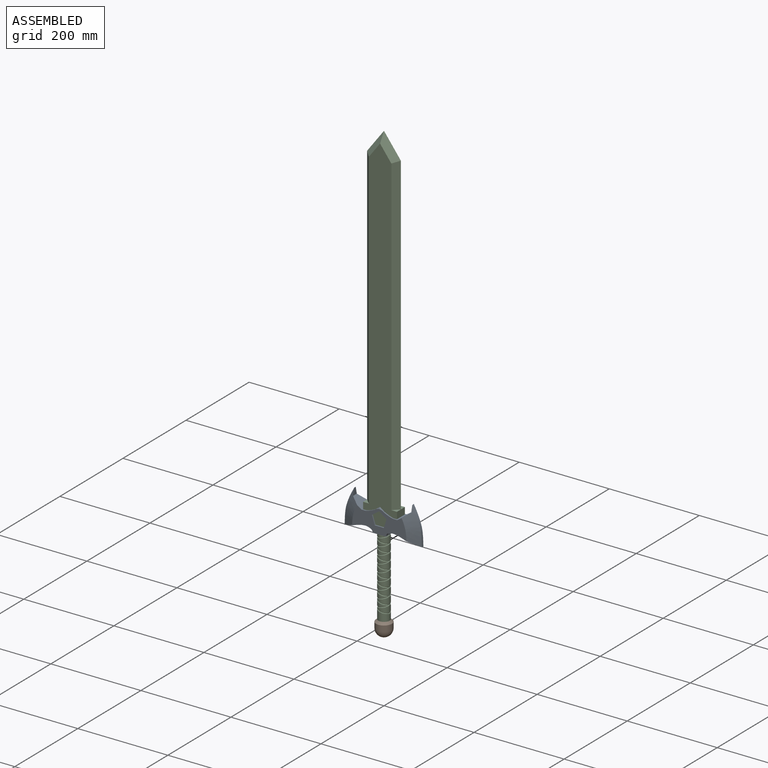
[diagram: assembled view]
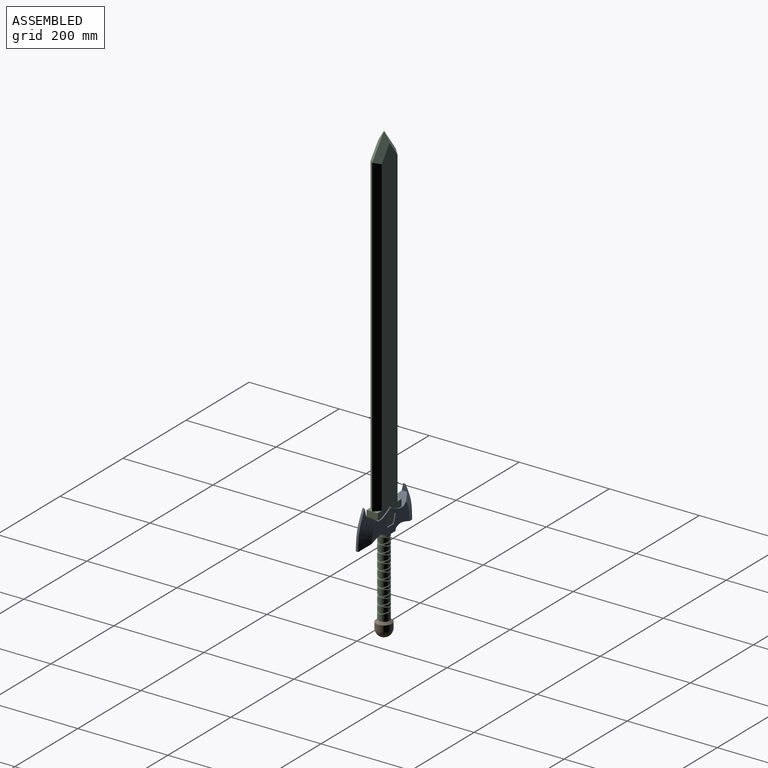
[diagram: assembled view, second angle]
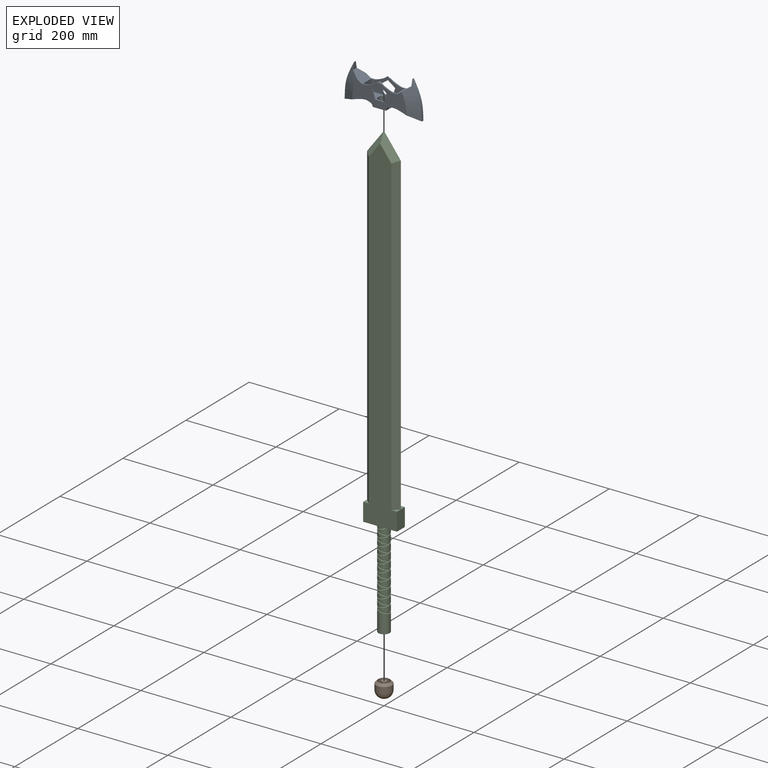
[diagram: exploded view]
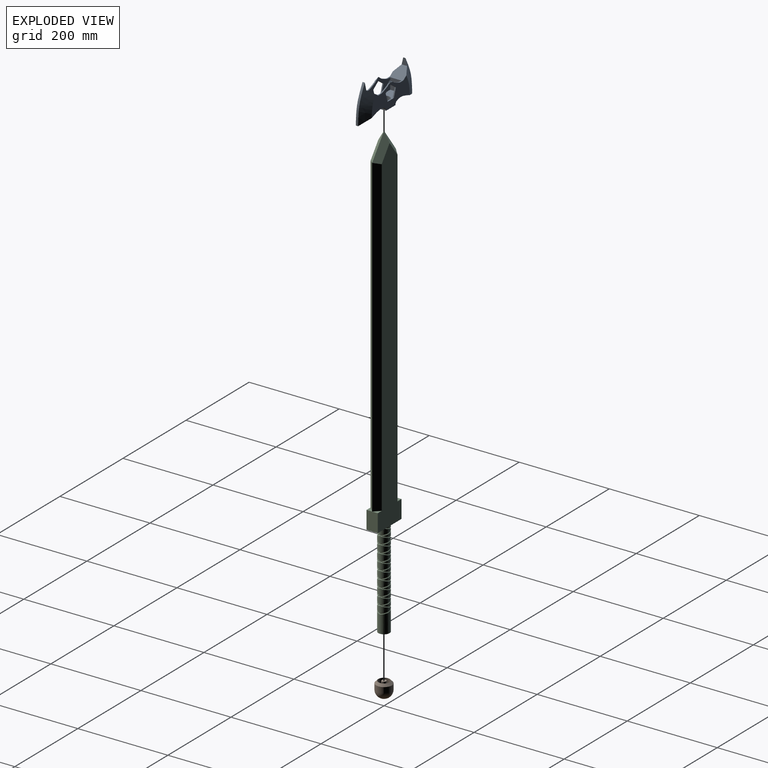
[diagram: exploded view, second angle]
ASSEMBLY  parts=3 mates=2
PART A: 64 faces, bbox 174.2x32.8x82.8 mm
  f0: plane 37.5x25mm, normal (0,0,1), area 692.1mm2, adj f59,f60,f61,f63
  f1: plane 16.18x11.76mm, normal (0.59,0,-0.81), area 50mm2, adj f2,f9,f44,f60
  f2: plane 16.18x11.76mm, normal (-0.59,0,-0.81), area 50mm2, adj f1,f3,f44,f60
  f3: plane 19.02x6.18mm, normal (-0.95,0,0.31), area 50mm2, adj f2,f4,f44,f60
  f4: plane 20x2.5mm, normal (0,0,1), area 50mm2, adj f3,f9,f44,f60
  f5: extruded ~20.42x7.5mm, area 54.6mm2, adj f6,f34,f44,f60
  f6: plane 2.5x2.07mm, normal (0.6,0,0.8), area 6.5mm2, adj f5,f12,f44,f60
  f7: plane 2.5x2.07mm, normal (-0.6,0,0.8), area 6.5mm2, adj f8,f37,f44,f60
  f8: extruded ~20.42x7.5mm, area 54.6mm2, adj f7,f40,f44,f60
  f9: plane 19.02x6.18mm, normal (0.95,0,0.31), area 50mm2, adj f1,f4,f44,f60
  f10: cylinder r=15mm len=7.17mm, axis (0,1,0), area 9.5mm2, adj f38,f45,f54
  f11: cylinder r=15mm len=7.17mm, axis (0,1,0), area 9.5mm2, adj f36,f45,f56
  f12: cylinder r=15mm len=7.17mm, axis (0,1,0), area 9.5mm2, adj f6,f44,f57
  f13: plane 16.18x11.76mm, normal (0.59,0,-0.81), area 50mm2, adj f14,f43,f45,f59
  f14: plane 16.18x11.76mm, normal (-0.59,0,-0.81), area 50mm2, adj f13,f15,f45,f59
  f15: plane 19.02x6.18mm, normal (-0.95,0,0.31), area 50mm2, adj f14,f16,f45,f59
  f16: plane 20x2.5mm, normal (0,0,1), area 50mm2, adj f15,f43,f45,f59
  f17: extruded ~39.57x17.21mm, area 216.3mm2, adj f18,f42,f50,f52
  f18: extruded ~39.99x5mm, area 201.4mm2, adj f17,f19,f51,f53
  f19: extruded ~53.47x30mm, area 1348.1mm2, adj f18,f20,f44,f45,f51,f53
  f20: plane 30x1.82mm, normal (0,0,-1), area 54.5mm2, adj f19,f21,f44,f45
  f21: extruded ~30x12.91mm, area 406.8mm2, adj f20,f22,f44,f45
  f22: plane 30x3.75mm, normal (-0.83,0,-0.55), area 135.2mm2, adj f21,f23,f44,f45
  f23: plane 30x2.5mm, normal (-1,0,0), area 75mm2, adj f22,f24,f44,f45
  f24: plane 30x30mm, normal (0,0,-1), area 409.1mm2, adj f23,f25,f44,f45,f63
  f25: plane 30x2.5mm, normal (1,0,0), area 75mm2, adj f24,f26,f44,f45
  f26: plane 30x3.75mm, normal (0.83,0,-0.55), area 135.2mm2, adj f25,f27,f44,f45
  f27: extruded ~30x12.91mm, area 406.8mm2, adj f26,f28,f44,f45
  f28: plane 30x1.82mm, normal (0,0,-1), area 54.5mm2, adj f27,f29,f44,f45
  f29: extruded ~53.47x30mm, area 1348.1mm2, adj f28,f30,f44,f45,f47,f49
  f30: extruded ~39.99x5mm, area 201.4mm2, adj f29,f31,f47,f49
  f31: extruded ~39.57x17.21mm, area 216.3mm2, adj f30,f32,f46,f48
  f32: plane 17.78x14.67mm, normal (-1,0,0), area 127mm2, adj f31,f33,f46,f48
  f33: plane 30.09x24.66mm, normal (-0.57,0,0.82), area 734.1mm2, adj f32,f34,f44,f45,f46,f48
  f34: plane 30x9.58mm, normal (0,0,1), area 110.4mm2, adj f5,f33,f35,f44,f45,f59,f60,f61
  f35: extruded ~20.42x7.5mm, area 54.6mm2, adj f34,f36,f45,f59
  f36: plane 2.5x2.07mm, normal (0.6,0,0.8), area 6.5mm2, adj f11,f35,f45,f59
  f37: cylinder r=15mm len=7.17mm, axis (0,1,0), area 9.5mm2, adj f7,f44,f55
  f38: plane 2.5x2.07mm, normal (-0.6,0,0.8), area 6.5mm2, adj f10,f39,f45,f59
  f39: extruded ~20.42x7.5mm, area 54.6mm2, adj f38,f40,f45,f59
  f40: plane 30x9.58mm, normal (0,0,1), area 110.4mm2, adj f8,f39,f41,f44,f45,f58,f59,f60
  f41: plane 30.09x24.66mm, normal (0.57,0,0.82), area 734.1mm2, adj f40,f42,f44,f45,f50,f52
  f42: plane 17.78x14.67mm, normal (1,0,0), area 127mm2, adj f17,f41,f50,f52
  f43: plane 19.02x6.18mm, normal (0.95,0,0.31), area 50mm2, adj f13,f16,f45,f59
  f44: plane 122.64x52.76mm, normal (0,-1,0), area 3699.4mm2, adj f1,f2,f3,f4,f5,f6,f7,f8
  f45: plane 122.64x52.76mm, normal (0,1,0), area 3699.4mm2, adj f10,f11,f13,f14,f15,f16,f19,f20
  f46: bspline ~45.85x39.34mm, area 784.9mm2, adj f31,f32,f33,f45,f47
  f47: bspline ~40.48x28.11mm, area 895.4mm2, adj f29,f30,f45,f46
  f48: bspline ~45.85x39.34mm, area 784.9mm2, adj f31,f32,f33,f44,f49
  f49: bspline ~40.48x28.11mm, area 895.4mm2, adj f29,f30,f44,f48
  f50: bspline ~45.85x39.34mm, area 784.9mm2, adj f17,f41,f42,f45,f51
  f51: bspline ~40.48x28.11mm, area 895.4mm2, adj f18,f19,f45,f50
  f52: bspline ~45.85x39.34mm, area 784.9mm2, adj f17,f41,f42,f44,f53
  f53: bspline ~40.48x28.11mm, area 895.4mm2, adj f18,f19,f44,f52
  f54: plane 8.83x6.85mm, normal (-0.42,0.71,0.57), area 15.8mm2, adj f10,f45,f56,f59
  f55: plane 8.83x6.85mm, normal (-0.42,-0.71,0.57), area 15.8mm2, adj f37,f44,f57,f60
  f56: plane 8.83x6.85mm, normal (0.42,0.71,0.57), area 15.8mm2, adj f11,f45,f54,f59
  f57: plane 8.83x6.85mm, normal (0.42,-0.71,0.57), area 15.8mm2, adj f12,f44,f55,f60
  f58: plane 25x25mm, normal (1,0,0), area 625mm2, adj f40,f59,f60,f62
  f59: plane 75x40mm, normal (0,-1,0), area 1542.7mm2, adj f0,f13,f14,f15,f16,f34,f35,f36
  f60: plane 75x40mm, normal (0,1,0), area 1542.7mm2, adj f0,f1,f2,f3,f4,f5,f6,f7
  f61: plane 25x25mm, normal (-1,0,0), area 625mm2, adj f0,f34,f59,f60
  f62: plane 37.5x25mm, normal (0,0,1), area 692.1mm2, adj f58,f59,f60,f63
  f63: cylinder r=12.5mm len=25mm, axis (0,0,-1), area 1178.1mm2, adj f0,f24,f62
PART B: 11 faces, bbox 35x35x35 mm
  f0: cylinder r=7.5mm len=5mm, axis (0,0,1), area 13.4mm2, adj f1,f8,f9,f10
  f1: plane 12.5x10mm, normal (0,0,1), area 85.3mm2, adj f0,f7,f8,f10
  f2: cylinder r=17.5mm len=35mm, axis (0,0,1), area 1374.4mm2, adj f3,f4
  f3: sphere r=17.5mm, area 1924.2mm2, adj f2
  f4: cone r=17.5mm half-angle=45deg, axis (0,0,-1), area 666.4mm2, adj f2,f6
  f5: plane 25x25mm, normal (0,0,1), area 412.3mm2, adj f6,f7
  f6: cylinder r=12.5mm len=25mm, axis (0,0,1), area 1963.5mm2, adj f4,f5
  f7: cylinder r=5mm len=25mm, axis (0,0,-1), area 771.9mm2, adj f1,f5,f8,f9,f10
  f8: plane 5x2.56mm, normal (0,1,0), area 12.8mm2, adj f0,f1,f7,f9
  f9: plane 2.68x2.67mm, normal (0,0,-1), area 6.7mm2, adj f0,f7,f8,f10
  f10: plane 5x2.56mm, normal (0,-1,0), area 12.8mm2, adj f0,f1,f7,f9
PART C: 87 faces, bbox 76.1x32.7x1006.1 mm
  f0: plane 769.17x75mm, normal (0,-1,0), area 38625mm2, adj f2,f3,f5,f7,f11,f12,f53,f63
  f1: plane 769.17x75mm, normal (0,1,0), area 38625mm2, adj f4,f6,f8,f9,f10,f13,f53,f63
  f2: plane 700x12.5mm, normal (-0.71,-0.71,0), area 12337.5mm2, adj f0,f3,f4,f12
  f3: plane 54.17x37.5mm, normal (-0.57,-0.71,0.42), area 920.7mm2, adj f0,f2,f5,f6
  f4: plane 700x12.5mm, normal (-0.71,0.71,0), area 12337.5mm2, adj f1,f2,f6,f13
  f5: plane 54.17x37.5mm, normal (0.57,-0.71,0.42), area 920.7mm2, adj f0,f3,f7,f8
  f6: plane 54.17x37.5mm, normal (-0.57,0.71,0.42), area 920.7mm2, adj f1,f3,f4,f8
  f7: plane 700x12.5mm, normal (0.71,-0.71,0), area 12337.5mm2, adj f0,f5,f9,f11
  f8: plane 54.17x37.5mm, normal (0.57,0.71,0.42), area 920.7mm2, adj f1,f5,f6,f9
  f9: plane 700x12.5mm, normal (0.71,0.71,0), area 12337.5mm2, adj f1,f7,f8,f10
  f10: plane 12.5x12.5mm, normal (0,0,1), area 78.1mm2, adj f1,f9,f65
  f11: plane 12.5x12.5mm, normal (0,0,1), area 78.1mm2, adj f0,f7,f65
  f12: plane 12.5x12.5mm, normal (0,0,1), area 78.1mm2, adj f0,f2,f64
  f13: plane 12.5x12.5mm, normal (0,0,1), area 78.1mm2, adj f1,f4,f64
  f14: cylinder r=12.5mm len=25mm, axis (0,0,1), area 252.6mm2, adj f53,f63,f66,f85
  f15: cylinder r=12.5mm len=25mm, axis (0,0,1), area 505.2mm2, adj f34,f66,f84,f85
  f16: cylinder r=12.5mm len=25mm, axis (0,0,1), area 505.2mm2, adj f34,f35,f83,f84
  f17: cylinder r=12.5mm len=25mm, axis (0,0,1), area 505.2mm2, adj f35,f36,f67,f83
  f18: cylinder r=12.5mm len=25mm, axis (0,0,1), area 505.2mm2, adj f36,f37,f67,f82
  f19: cylinder r=12.5mm len=25mm, axis (0,0,1), area 505.2mm2, adj f37,f38,f68,f82
  f20: cylinder r=12.5mm len=25mm, axis (0,0,1), area 505.2mm2, adj f38,f39,f68,f81
  f21: cylinder r=12.5mm len=25mm, axis (0,0,1), area 505.2mm2, adj f39,f40,f69,f81
  f22: cylinder r=12.5mm len=25mm, axis (0,0,1), area 505.2mm2, adj f40,f41,f69,f80
  f23: cylinder r=12.5mm len=25mm, axis (0,0,1), area 505.2mm2, adj f41,f42,f70,f80
  f24: cylinder r=12.5mm len=25mm, axis (0,0,1), area 505.2mm2, adj f42,f43,f70,f79
  f25: cylinder r=12.5mm len=25mm, axis (0,0,1), area 505.2mm2, adj f43,f44,f71,f79
  f26: cylinder r=12.5mm len=25mm, axis (0,0,1), area 505.2mm2, adj f44,f45,f71,f72
  f27: cylinder r=12.5mm len=25mm, axis (0,0,1), area 505.2mm2, adj f45,f46,f72,f73
  f28: cylinder r=12.5mm len=25mm, axis (0,0,1), area 505.2mm2, adj f46,f47,f73,f74
  f29: cylinder r=12.5mm len=25mm, axis (0,0,1), area 505.2mm2, adj f47,f48,f74,f75
  f30: cylinder r=12.5mm len=25mm, axis (0,0,1), area 505.2mm2, adj f48,f49,f75,f76
  f31: cylinder r=12.5mm len=25mm, axis (0,0,1), area 505.2mm2, adj f49,f50,f76,f77
  f32: cylinder r=12.5mm len=25mm, axis (0,0,1), area 505.2mm2, adj f50,f51,f77,f78
  f33: cylinder r=12.5mm len=25mm, axis (0,0,1), area 505.2mm2, adj f51,f52,f78,f86
  f34: bspline ~30x24.59mm, area 137mm2, adj f15,f16,f83,f84,f85
  f35: bspline ~30x24.59mm, area 137mm2, adj f16,f17,f67,f83,f84
  f36: bspline ~30x24.59mm, area 137mm2, adj f17,f18,f67,f82,f83
  f37: bspline ~30x24.59mm, area 137mm2, adj f18,f19,f67,f68,f82
  f38: bspline ~30x24.59mm, area 137mm2, adj f19,f20,f68,f81,f82
  f39: bspline ~30x24.59mm, area 137mm2, adj f20,f21,f68,f69,f81
  f40: bspline ~30x24.59mm, area 137mm2, adj f21,f22,f69,f80,f81
  f41: bspline ~30x24.59mm, area 137mm2, adj f22,f23,f69,f70,f80
  f42: bspline ~30x24.59mm, area 137mm2, adj f23,f24,f70,f79,f80
  f43: bspline ~30x24.59mm, area 137mm2, adj f24,f25,f70,f71,f79
  f44: bspline ~30x24.59mm, area 137mm2, adj f25,f26,f71,f72,f79
  f45: bspline ~30x24.59mm, area 137mm2, adj f26,f27,f71,f72,f73
  f46: bspline ~30x24.59mm, area 137mm2, adj f27,f28,f72,f73,f74
  f47: bspline ~30x24.59mm, area 137mm2, adj f28,f29,f73,f74,f75
  f48: bspline ~30x24.59mm, area 137mm2, adj f29,f30,f74,f75,f76
  f49: bspline ~30x24.59mm, area 137mm2, adj f30,f31,f75,f76,f77
  f50: bspline ~30x24.59mm, area 137mm2, adj f31,f32,f76,f77,f78
  f51: bspline ~30x24.59mm, area 137mm2, adj f32,f33,f77,f78,f86
  f52: bspline ~30x24.59mm, area 141.7mm2, adj f33,f55,f78,f86
  f53: plane 38.62x26.12mm, normal (0,0,-1), area 680.6mm2, adj f0,f1,f14,f65,f66,f85
  f54: plane 25x25mm, normal (0,0,-1), area 405.6mm2, adj f55,f56,f59,f60,f62
  f55: cylinder r=12.5mm len=47.5mm, axis (0,0,1), area 3387mm2, adj f52,f54,f86
  f56: cylinder r=5mm len=25mm, axis (0,0,-1), area 639.2mm2, adj f54,f57,f58,f60,f61,f62
  f57: plane 15x12.5mm, normal (0,0,-1), area 134.4mm2, adj f56,f58,f59,f60
  f58: plane 5x2.56mm, normal (0,-1,0), area 12.8mm2, adj f56,f57,f59,f61
  f59: cylinder r=7.5mm len=25mm, axis (0,0,1), area 185mm2, adj f54,f57,f58,f60,f61,f62
  f60: plane 25x2.56mm, normal (0,-1,0), area 64mm2, adj f54,f56,f57,f59
  f61: plane 14.88x8.84mm, normal (0,0,1), area 49.1mm2, adj f56,f58,f59,f62
  f62: plane 20x2.56mm, normal (0,1,0), area 51.2mm2, adj f54,f56,f59,f61
  f63: plane 37.5x25mm, normal (0,0,-1), area 692.1mm2, adj f0,f1,f14,f64
  f64: plane 40x25mm, normal (-1,0,0), area 1000mm2, adj f0,f1,f12,f13,f63
  f65: plane 40x25mm, normal (1,0,0), area 1000mm2, adj f0,f1,f10,f11,f53
  f66: bspline ~30x24.59mm, area 146.8mm2, adj f14,f15,f53,f84,f85
  f67: bspline ~30x24.59mm, area 137mm2, adj f17,f18,f35,f36,f37
  f68: bspline ~30x24.59mm, area 137mm2, adj f19,f20,f37,f38,f39
  f69: bspline ~30x24.59mm, area 137mm2, adj f21,f22,f39,f40,f41
  f70: bspline ~30x24.59mm, area 137mm2, adj f23,f24,f41,f42,f43
  f71: bspline ~30x24.59mm, area 137mm2, adj f25,f26,f43,f44,f45
  f72: bspline ~30x24.59mm, area 137mm2, adj f26,f27,f44,f45,f46
  f73: bspline ~30x24.59mm, area 137mm2, adj f27,f28,f45,f46,f47
  f74: bspline ~30x24.59mm, area 137mm2, adj f28,f29,f46,f47,f48
  f75: bspline ~30x24.59mm, area 137mm2, adj f29,f30,f47,f48,f49
  f76: bspline ~30x24.59mm, area 137mm2, adj f30,f31,f48,f49,f50
  f77: bspline ~30x24.59mm, area 137mm2, adj f31,f32,f49,f50,f51
  f78: bspline ~30x24.59mm, area 137mm2, adj f32,f33,f50,f51,f52
  f79: bspline ~30x24.59mm, area 137mm2, adj f24,f25,f42,f43,f44
  f80: bspline ~30x24.59mm, area 137mm2, adj f22,f23,f40,f41,f42
  f81: bspline ~30x24.59mm, area 137mm2, adj f20,f21,f38,f39,f40
  f82: bspline ~30x24.59mm, area 137mm2, adj f18,f19,f36,f37,f38
  f83: bspline ~30x24.59mm, area 137mm2, adj f16,f17,f34,f35,f36
  f84: bspline ~30x24.59mm, area 137mm2, adj f15,f16,f34,f35,f66
  f85: bspline ~30x24.59mm, area 146.8mm2, adj f14,f15,f34,f53,f66
  f86: bspline ~30x24.59mm, area 141.7mm2, adj f33,f51,f52,f55
PLACE A t=(0,0,10)mm
PLACE B t=(0,0,50)mm
PLACE C at identity fixed
MATE fastened A.f63 <-> C.f56  axis (0,0,1) through (0,0,15)mm
MATE fastened B.f6 <-> C.f59  axis (0,0,1) through (0,0,-175)mm
